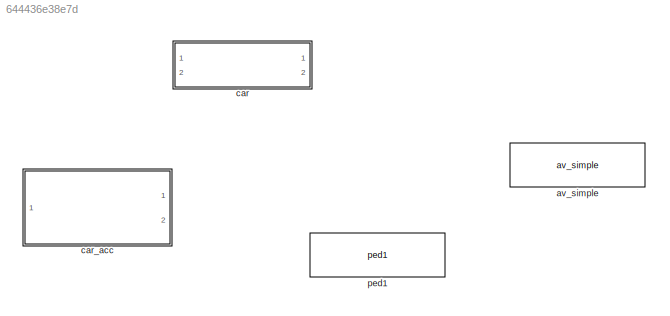
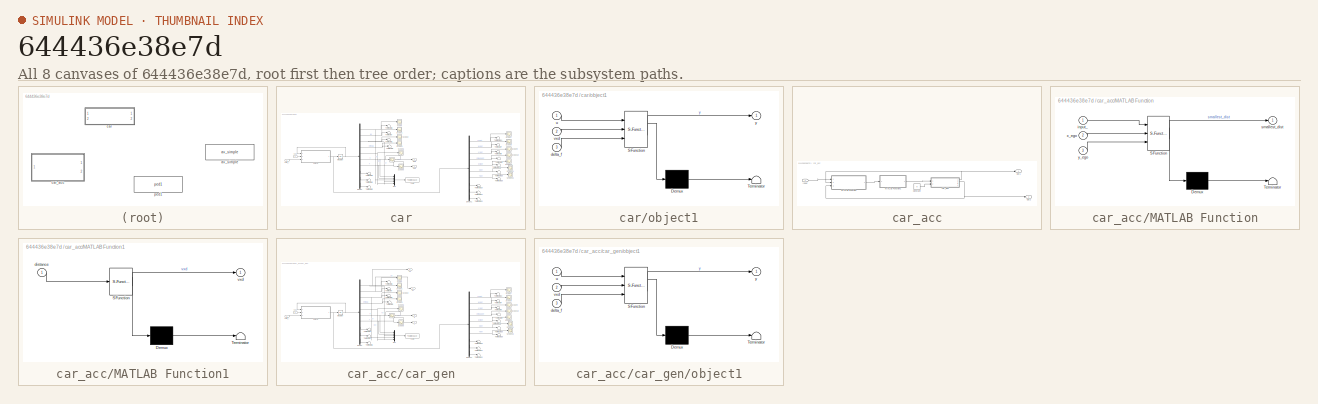
[diagram: thumbnail index - all 8 canvases of the model, root first then tree order]
MODEL slx_644436e38e7d
KIND library
CONFIG AbsTol = auto
CONFIG EnableMultiTasking = off
CONFIG FixedStep = auto
CONFIG MaxStep = auto
CONFIG MinStep = auto
CONFIG RelTol = 1e-3
CONFIG SampleTimeConstraint = Unconstrained
CONFIG Solver = VariableStepAuto
CONFIG SolverName = VariableStepAuto
CONFIG StartTime = 0.0
CONFIG StopTime = 10.0
BLOCK [Reference] av_simple  REF=genericAgentLib/av_simple
  Ports = [3]
  SourceBlock = genericAgentLib/av_simple
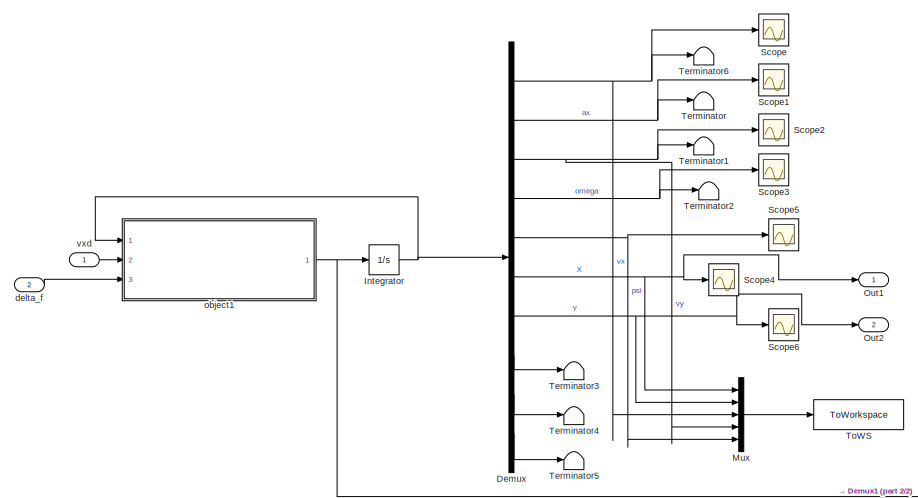
[diagram: car - part 1/2, left side, full height]
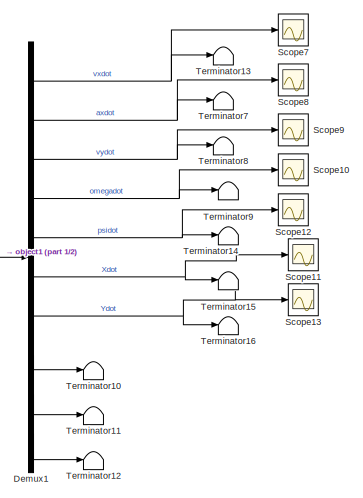
[diagram: car - part 2/2, right side, full height]
BLOCK [SubSystem] car
  AncestorBlock = genericAgentLib/car
  Ports = [2, 2]
  RequestExecContextInheritance = off
BLOCK [Demux] car/Demux
  DisplayOption = bar
  Outputs = 10
  Ports = [1, 10]
BLOCK [Demux] car/Demux1
  DisplayOption = bar
  Outputs = 10
  Ports = [1, 10]
BLOCK [Integrator] car/Integrator
  InitialCondition = obj.init
  Ports = [1, 1]
BLOCK [Mux] car/Mux
  DisplayOption = bar
  Inputs = 5
  Ports = [5, 1]
BLOCK [Outport] car/Out1
  IconDisplay = Port number
BLOCK [Outport] car/Out2
  IconDisplay = Port number
  Port = 2
BLOCK [Scope] car/Scope
  Floating = off
  NumInputPorts = 1
  Ports = [1]
  ScopeSpecificationString = Simulink.scopes.TimeScopeBlockCfg('CurrentConfiguration', extmgr.ConfigurationSet(extmgr.Configuration('Core','General UI',true),extmgr.Configuration('Core','Source UI',true),extmgr.Configuration('Sources','WiredSimulink',true,'DataLoggingVariableName','ScopeData1'),extmgr.Configuration('Visuals','Time Domain',true,'SerializedDisplays',{struct('MinYLimReal','-1.30429','MaxYLimReal','11.73858','YLa...<+1365ch>
BLOCK [Scope] car/Scope1
  Floating = off
  NumInputPorts = 1
  Ports = [1]
  ScopeSpecificationString = Simulink.scopes.TimeScopeBlockCfg('CurrentConfiguration', extmgr.ConfigurationSet(extmgr.Configuration('Core','General UI',true),extmgr.Configuration('Core','Source UI',true),extmgr.Configuration('Sources','WiredSimulink',true,'DataLoggingVariableName','ScopeData2'),extmgr.Configuration('Visuals','Time Domain',true,'SerializedDisplays',{struct('MinYLimReal','-7.94136','MaxYLimReal','51.56418','YLa...<+1365ch>
BLOCK [Scope] car/Scope10
  Floating = off
  NumInputPorts = 1
  Ports = [1]
  ScopeSpecificationString = Simulink.scopes.TimeScopeBlockCfg('CurrentConfiguration', extmgr.ConfigurationSet(extmgr.Configuration('Core','General UI',true),extmgr.Configuration('Core','Source UI',true),extmgr.Configuration('Sources','WiredSimulink',true,'DataLoggingVariableName','ScopeData1'),extmgr.Configuration('Visuals','Time Domain',true,'SerializedDisplays',{struct('MinYLimReal','-0.26788','MaxYLimReal','2.20907','YLab...<+1367ch>
BLOCK [Scope] car/Scope11
  Floating = off
  NumInputPorts = 1
  Ports = [1]
  ScopeSpecificationString = Simulink.scopes.TimeScopeBlockCfg('CurrentConfiguration', extmgr.ConfigurationSet(extmgr.Configuration('Core','General UI',true),extmgr.Configuration('Core','Source UI',true),extmgr.Configuration('Sources','WiredSimulink',true,'DataLoggingVariableName','ScopeData2'),extmgr.Configuration('Visuals','Time Domain',true,'SerializedDisplays',{struct('MinYLimReal','-11.14338','MaxYLimReal','100.29045','Y...<+1370ch>
BLOCK [Scope] car/Scope12
  Floating = off
  NumInputPorts = 1
  Ports = [1]
  ScopeSpecificationString = Simulink.scopes.TimeScopeBlockCfg('CurrentConfiguration', extmgr.ConfigurationSet(extmgr.Configuration('Core','General UI',true),extmgr.Configuration('Core','Source UI',true),extmgr.Configuration('Sources','WiredSimulink',true,'DataLoggingVariableName','ScopeData3'),extmgr.Configuration('Visuals','Time Domain',true,'SerializedDisplays',{struct('MinYLimReal','-0.02362','MaxYLimReal','0.21262','YLab...<+1365ch>
BLOCK [Scope] car/Scope13
  Floating = off
  NumInputPorts = 1
  Ports = [1]
  ScopeSpecificationString = Simulink.scopes.TimeScopeBlockCfg('CurrentConfiguration', extmgr.ConfigurationSet(extmgr.Configuration('Core','General UI',true),extmgr.Configuration('Core','Source UI',true),extmgr.Configuration('Sources','WiredSimulink',true,'DataLoggingVariableName','ScopeData4'),extmgr.Configuration('Visuals','Time Domain',true,'SerializedDisplays',{struct('MinYLimReal','-12.50135','MaxYLimReal','12.50096','YL...<+1369ch>
BLOCK [Scope] car/Scope2
  Floating = off
  NumInputPorts = 1
  Ports = [1]
  ScopeSpecificationString = Simulink.scopes.TimeScopeBlockCfg('CurrentConfiguration', extmgr.ConfigurationSet(extmgr.Configuration('Core','General UI',true),extmgr.Configuration('Core','Source UI',true),extmgr.Configuration('Sources','WiredSimulink',true,'DataLoggingVariableName','ScopeData3'),extmgr.Configuration('Visuals','Time Domain',true,'SerializedDisplays',{struct('MinYLimReal','-0.02095','MaxYLimReal','0.18855','YLab...<+1390ch>
BLOCK [Scope] car/Scope3
  Floating = off
  NumInputPorts = 1
  Ports = [1]
  ScopeSpecificationString = Simulink.scopes.TimeScopeBlockCfg('CurrentConfiguration', extmgr.ConfigurationSet(extmgr.Configuration('Core','General UI',true),extmgr.Configuration('Core','Source UI',true),extmgr.Configuration('Sources','WiredSimulink',true,'DataLoggingVariableName','ScopeData4'),extmgr.Configuration('Visuals','Time Domain',true,'SerializedDisplays',{struct('MinYLimReal','-0.02362','MaxYLimReal','0.21262','YLab...<+1364ch>
BLOCK [Scope] car/Scope4
  Floating = off
  NumInputPorts = 1
  Ports = [1]
  ScopeSpecificationString = Simulink.scopes.TimeScopeBlockCfg('CurrentConfiguration', extmgr.ConfigurationSet(extmgr.Configuration('Core','General UI',true),extmgr.Configuration('Core','Source UI',true),extmgr.Configuration('Sources','WiredSimulink',true,'DataLoggingVariableName','ScopeData5'),extmgr.Configuration('Visuals','Time Domain',true,'SerializedDisplays',{struct('MinYLimReal','-20.34242','MaxYLimReal','22.60029','YL...<+1366ch>
BLOCK [Scope] car/Scope5
  Floating = off
  NumInputPorts = 1
  Ports = [1]
  ScopeSpecificationString = Simulink.scopes.TimeScopeBlockCfg('CurrentConfiguration', extmgr.ConfigurationSet(extmgr.Configuration('Core','General UI',true),extmgr.Configuration('Core','Source UI',true),extmgr.Configuration('Sources','WiredSimulink',true,'DataLoggingVariableName','ScopeData6'),extmgr.Configuration('Visuals','Time Domain',true,'SerializedDisplays',{struct('MinYLimReal','-0.08776','MaxYLimReal','0.78983','YLab...<+1362ch>
BLOCK [Scope] car/Scope6
  Floating = off
  NumInputPorts = 1
  Ports = [1]
  ScopeSpecificationString = Simulink.scopes.TimeScopeBlockCfg('CurrentConfiguration', extmgr.ConfigurationSet(extmgr.Configuration('Core','General UI',true),extmgr.Configuration('Core','Source UI',true),extmgr.Configuration('Sources','WiredSimulink',true,'DataLoggingVariableName','ScopeData7'),extmgr.Configuration('Visuals','Time Domain',true,'SerializedDisplays',{struct('MinYLimReal','-38.61337','MaxYLimReal','4.33051','YLa...<+1364ch>
BLOCK [Scope] car/Scope7
  Floating = off
  NumInputPorts = 1
  Ports = [1]
  ScopeSpecificationString = Simulink.scopes.TimeScopeBlockCfg('CurrentConfiguration', extmgr.ConfigurationSet(extmgr.Configuration('Core','General UI',true),extmgr.Configuration('Core','Source UI',true),extmgr.Configuration('Sources','WiredSimulink',true,'DataLoggingVariableName','ScopeData5'),extmgr.Configuration('Visuals','Time Domain',true,'SerializedDisplays',{struct('MinYLimReal','-7.98679','MaxYLimReal','51.5673','YLab...<+1364ch>
BLOCK [Scope] car/Scope8
  Floating = off
  NumInputPorts = 1
  Ports = [1]
  ScopeSpecificationString = Simulink.scopes.TimeScopeBlockCfg('CurrentConfiguration', extmgr.ConfigurationSet(extmgr.Configuration('Core','General UI',true),extmgr.Configuration('Core','Source UI',true),extmgr.Configuration('Sources','WiredSimulink',true,'DataLoggingVariableName','ScopeData6'),extmgr.Configuration('Visuals','Time Domain',true,'SerializedDisplays',{struct('MinYLimReal','-359.43212','MaxYLimReal','1151.04801',...<+1382ch>
BLOCK [Scope] car/Scope9
  Floating = off
  NumInputPorts = 1
  Ports = [1]
  ScopeSpecificationString = Simulink.scopes.TimeScopeBlockCfg('CurrentConfiguration', extmgr.ConfigurationSet(extmgr.Configuration('Core','General UI',true),extmgr.Configuration('Core','Source UI',true),extmgr.Configuration('Sources','WiredSimulink',true,'DataLoggingVariableName','ScopeData7'),extmgr.Configuration('Visuals','Time Domain',true,'SerializedDisplays',{struct('MinYLimReal','-1.62163','MaxYLimReal','7.93421','YLab...<+1364ch>
BLOCK [Terminator] car/Terminator
BLOCK [Terminator] car/Terminator1
BLOCK [Terminator] car/Terminator10
BLOCK [Terminator] car/Terminator11
BLOCK [Terminator] car/Terminator12
BLOCK [Terminator] car/Terminator13
BLOCK [Terminator] car/Terminator14
BLOCK [Terminator] car/Terminator15
BLOCK [Terminator] car/Terminator16
BLOCK [Terminator] car/Terminator2
BLOCK [Terminator] car/Terminator3
BLOCK [Terminator] car/Terminator4
BLOCK [Terminator] car/Terminator5
BLOCK [Terminator] car/Terminator6
BLOCK [Terminator] car/Terminator7
BLOCK [Terminator] car/Terminator8
BLOCK [Terminator] car/Terminator9
BLOCK [ToWorkspace] car/ToWS
  FixptAsFi = on
  MaxDataPoints = inf
  Ports = [1]
  SampleTime = -1
  SaveFormat = Timeseries
  VariableName = Car1
BLOCK [Inport] car/delta_f
  IconDisplay = Port number
  Port = 2
BLOCK [SubSystem] car/object1
  ErrorFcn = Stateflow.Translate.translate
  PermitHierarchicalResolution = ExplicitOnly
  Ports = [3, 1]
  RequestExecContextInheritance = off
  SFBlockType = MATLAB Function
  TreatAsAtomicUnit = on
BLOCK [Demux] car/object1/ Demux 
  Outputs = 1
  Ports = [1, 1]
BLOCK [S-Function] car/object1/ SFunction 
  EnableBusSupport = off
  FunctionName = sf_sfun
  Parameters = obj
  PortCounts = [3 2]
  Ports = [3, 2]
  SFcnIsStateOwnerBlock = off
  SFunctionDeploymentMode = off
  Tag = Stateflow S-Function 2
BLOCK [Terminator] car/object1/ Terminator 
BLOCK [Inport] car/object1/delta_f
  IconDisplay = Port number
  Port = 3
BLOCK [Inport] car/object1/u
  IconDisplay = Port number
BLOCK [Inport] car/object1/vxd
  IconDisplay = Port number
  Port = 2
BLOCK [Outport] car/object1/y
  IconDisplay = Port number
BLOCK [Inport] car/vxd 
  IconDisplay = Port number
BLOCK [SubSystem] car_acc
  Ports = [1, 2]
  RequestExecContextInheritance = off
BLOCK [Constant] car_acc/Constant
  Value = 0
BLOCK [Inport] car_acc/Input
  IconDisplay = Port number
BLOCK [SubSystem] car_acc/MATLAB Function
  ErrorFcn = Stateflow.Translate.translate
  PermitHierarchicalResolution = ExplicitOnly
  Ports = [3, 1]
  RequestExecContextInheritance = off
  SFBlockType = MATLAB Function
  TreatAsAtomicUnit = on
BLOCK [Demux] car_acc/MATLAB Function/ Demux 
  Outputs = 1
  Ports = [1, 1]
BLOCK [S-Function] car_acc/MATLAB Function/ SFunction 
  EnableBusSupport = off
  FunctionName = sf_sfun
  PortCounts = [3 2]
  Ports = [3, 2]
  SFcnIsStateOwnerBlock = off
  SFunctionDeploymentMode = off
  Tag = Stateflow S-Function 3
BLOCK [Terminator] car_acc/MATLAB Function/ Terminator 
BLOCK [Inport] car_acc/MATLAB Function/input_
  IconDisplay = Port number
BLOCK [Outport] car_acc/MATLAB Function/smallest_dist
  IconDisplay = Port number
BLOCK [Inport] car_acc/MATLAB Function/x_ego
  IconDisplay = Port number
  Port = 2
BLOCK [Inport] car_acc/MATLAB Function/y_ego
  IconDisplay = Port number
  Port = 3
BLOCK [SubSystem] car_acc/MATLAB Function1
  ErrorFcn = Stateflow.Translate.translate
  PermitHierarchicalResolution = ExplicitOnly
  Ports = [1, 1]
  RequestExecContextInheritance = off
  SFBlockType = MATLAB Function
  TreatAsAtomicUnit = on
BLOCK [Demux] car_acc/MATLAB Function1/ Demux 
  Outputs = 1
  Ports = [1, 1]
BLOCK [S-Function] car_acc/MATLAB Function1/ SFunction 
  EnableBusSupport = off
  FunctionName = sf_sfun
  PortCounts = [1 2]
  Ports = [1, 2]
  SFcnIsStateOwnerBlock = off
  SFunctionDeploymentMode = off
  Tag = Stateflow S-Function 4
BLOCK [Terminator] car_acc/MATLAB Function1/ Terminator 
BLOCK [Inport] car_acc/MATLAB Function1/distance
  IconDisplay = Port number
BLOCK [Outport] car_acc/MATLAB Function1/vxd
  IconDisplay = Port number
BLOCK [Outport] car_acc/Out1
  IconDisplay = Port number
BLOCK [Outport] car_acc/Out2
  IconDisplay = Port number
  Port = 2
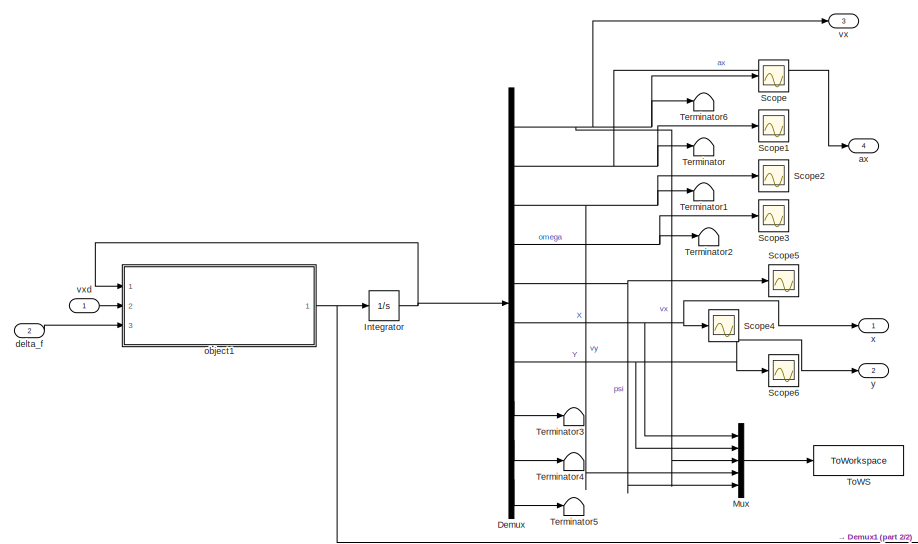
[diagram: car_acc/car_gen - part 1/2, left side, full height]
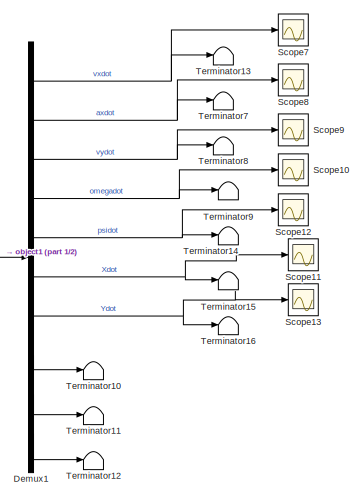
[diagram: car_acc/car_gen - part 2/2, right side, full height]
BLOCK [SubSystem] car_acc/car_gen
  AncestorBlock = genericAgentLib/car
  Ports = [2, 4]
  RequestExecContextInheritance = off
BLOCK [Demux] car_acc/car_gen/Demux
  DisplayOption = bar
  Outputs = 10
  Ports = [1, 10]
BLOCK [Demux] car_acc/car_gen/Demux1
  DisplayOption = bar
  Outputs = 10
  Ports = [1, 10]
BLOCK [Integrator] car_acc/car_gen/Integrator
  InitialCondition = obj.init
  Ports = [1, 1]
BLOCK [Mux] car_acc/car_gen/Mux
  DisplayOption = bar
  Inputs = 5
  Ports = [5, 1]
BLOCK [Scope] car_acc/car_gen/Scope
  Floating = off
  NumInputPorts = 1
  Ports = [1]
  ScopeSpecificationString = Simulink.scopes.TimeScopeBlockCfg('CurrentConfiguration', extmgr.ConfigurationSet(extmgr.Configuration('Core','General UI',true),extmgr.Configuration('Core','Source UI',true),extmgr.Configuration('Sources','WiredSimulink',true,'DataLoggingVariableName','ScopeData1'),extmgr.Configuration('Visuals','Time Domain',true,'SerializedDisplays',{struct('MinYLimReal','-1.30429','MaxYLimReal','11.73858','YLa...<+1365ch>
BLOCK [Scope] car_acc/car_gen/Scope1
  Floating = off
  NumInputPorts = 1
  Ports = [1]
  ScopeSpecificationString = Simulink.scopes.TimeScopeBlockCfg('CurrentConfiguration', extmgr.ConfigurationSet(extmgr.Configuration('Core','General UI',true),extmgr.Configuration('Core','Source UI',true),extmgr.Configuration('Sources','WiredSimulink',true,'DataLoggingVariableName','ScopeData2'),extmgr.Configuration('Visuals','Time Domain',true,'SerializedDisplays',{struct('MinYLimReal','-7.94136','MaxYLimReal','51.56418','YLa...<+1365ch>
BLOCK [Scope] car_acc/car_gen/Scope10
  Floating = off
  NumInputPorts = 1
  Ports = [1]
  ScopeSpecificationString = Simulink.scopes.TimeScopeBlockCfg('CurrentConfiguration', extmgr.ConfigurationSet(extmgr.Configuration('Core','General UI',true),extmgr.Configuration('Core','Source UI',true),extmgr.Configuration('Sources','WiredSimulink',true,'DataLoggingVariableName','ScopeData1'),extmgr.Configuration('Visuals','Time Domain',true,'SerializedDisplays',{struct('MinYLimReal','-0.26788','MaxYLimReal','2.20907','YLab...<+1367ch>
BLOCK [Scope] car_acc/car_gen/Scope11
  Floating = off
  NumInputPorts = 1
  Ports = [1]
  ScopeSpecificationString = Simulink.scopes.TimeScopeBlockCfg('CurrentConfiguration', extmgr.ConfigurationSet(extmgr.Configuration('Core','General UI',true),extmgr.Configuration('Core','Source UI',true),extmgr.Configuration('Sources','WiredSimulink',true,'DataLoggingVariableName','ScopeData2'),extmgr.Configuration('Visuals','Time Domain',true,'SerializedDisplays',{struct('MinYLimReal','-11.14338','MaxYLimReal','100.29045','Y...<+1370ch>
BLOCK [Scope] car_acc/car_gen/Scope12
  Floating = off
  NumInputPorts = 1
  Ports = [1]
  ScopeSpecificationString = Simulink.scopes.TimeScopeBlockCfg('CurrentConfiguration', extmgr.ConfigurationSet(extmgr.Configuration('Core','General UI',true),extmgr.Configuration('Core','Source UI',true),extmgr.Configuration('Sources','WiredSimulink',true,'DataLoggingVariableName','ScopeData3'),extmgr.Configuration('Visuals','Time Domain',true,'SerializedDisplays',{struct('MinYLimReal','-0.02362','MaxYLimReal','0.21262','YLab...<+1365ch>
BLOCK [Scope] car_acc/car_gen/Scope13
  Floating = off
  NumInputPorts = 1
  Ports = [1]
  ScopeSpecificationString = Simulink.scopes.TimeScopeBlockCfg('CurrentConfiguration', extmgr.ConfigurationSet(extmgr.Configuration('Core','General UI',true),extmgr.Configuration('Core','Source UI',true),extmgr.Configuration('Sources','WiredSimulink',true,'DataLoggingVariableName','ScopeData4'),extmgr.Configuration('Visuals','Time Domain',true,'SerializedDisplays',{struct('MinYLimReal','-12.50135','MaxYLimReal','12.50096','YL...<+1369ch>
BLOCK [Scope] car_acc/car_gen/Scope2
  Floating = off
  NumInputPorts = 1
  Ports = [1]
  ScopeSpecificationString = Simulink.scopes.TimeScopeBlockCfg('CurrentConfiguration', extmgr.ConfigurationSet(extmgr.Configuration('Core','General UI',true),extmgr.Configuration('Core','Source UI',true),extmgr.Configuration('Sources','WiredSimulink',true,'DataLoggingVariableName','ScopeData3'),extmgr.Configuration('Visuals','Time Domain',true,'SerializedDisplays',{struct('MinYLimReal','-0.02095','MaxYLimReal','0.18855','YLab...<+1390ch>
BLOCK [Scope] car_acc/car_gen/Scope3
  Floating = off
  NumInputPorts = 1
  Ports = [1]
  ScopeSpecificationString = Simulink.scopes.TimeScopeBlockCfg('CurrentConfiguration', extmgr.ConfigurationSet(extmgr.Configuration('Core','General UI',true),extmgr.Configuration('Core','Source UI',true),extmgr.Configuration('Sources','WiredSimulink',true,'DataLoggingVariableName','ScopeData4'),extmgr.Configuration('Visuals','Time Domain',true,'SerializedDisplays',{struct('MinYLimReal','-0.02362','MaxYLimReal','0.21262','YLab...<+1364ch>
BLOCK [Scope] car_acc/car_gen/Scope4
  Floating = off
  NumInputPorts = 1
  Ports = [1]
  ScopeSpecificationString = Simulink.scopes.TimeScopeBlockCfg('CurrentConfiguration', extmgr.ConfigurationSet(extmgr.Configuration('Core','General UI',true),extmgr.Configuration('Core','Source UI',true),extmgr.Configuration('Sources','WiredSimulink',true,'DataLoggingVariableName','ScopeData5'),extmgr.Configuration('Visuals','Time Domain',true,'SerializedDisplays',{struct('MinYLimReal','-20.34242','MaxYLimReal','22.60029','YL...<+1366ch>
BLOCK [Scope] car_acc/car_gen/Scope5
  Floating = off
  NumInputPorts = 1
  Ports = [1]
  ScopeSpecificationString = Simulink.scopes.TimeScopeBlockCfg('CurrentConfiguration', extmgr.ConfigurationSet(extmgr.Configuration('Core','General UI',true),extmgr.Configuration('Core','Source UI',true),extmgr.Configuration('Sources','WiredSimulink',true,'DataLoggingVariableName','ScopeData6'),extmgr.Configuration('Visuals','Time Domain',true,'SerializedDisplays',{struct('MinYLimReal','-0.08776','MaxYLimReal','0.78983','YLab...<+1362ch>
BLOCK [Scope] car_acc/car_gen/Scope6
  Floating = off
  NumInputPorts = 1
  Ports = [1]
  ScopeSpecificationString = Simulink.scopes.TimeScopeBlockCfg('CurrentConfiguration', extmgr.ConfigurationSet(extmgr.Configuration('Core','General UI',true),extmgr.Configuration('Core','Source UI',true),extmgr.Configuration('Sources','WiredSimulink',true,'DataLoggingVariableName','ScopeData7'),extmgr.Configuration('Visuals','Time Domain',true,'SerializedDisplays',{struct('MinYLimReal','-38.61337','MaxYLimReal','4.33051','YLa...<+1364ch>
BLOCK [Scope] car_acc/car_gen/Scope7
  Floating = off
  NumInputPorts = 1
  Ports = [1]
  ScopeSpecificationString = Simulink.scopes.TimeScopeBlockCfg('CurrentConfiguration', extmgr.ConfigurationSet(extmgr.Configuration('Core','General UI',true),extmgr.Configuration('Core','Source UI',true),extmgr.Configuration('Sources','WiredSimulink',true,'DataLoggingVariableName','ScopeData5'),extmgr.Configuration('Visuals','Time Domain',true,'SerializedDisplays',{struct('MinYLimReal','-7.98679','MaxYLimReal','51.5673','YLab...<+1364ch>
BLOCK [Scope] car_acc/car_gen/Scope8
  Floating = off
  NumInputPorts = 1
  Ports = [1]
  ScopeSpecificationString = Simulink.scopes.TimeScopeBlockCfg('CurrentConfiguration', extmgr.ConfigurationSet(extmgr.Configuration('Core','General UI',true),extmgr.Configuration('Core','Source UI',true),extmgr.Configuration('Sources','WiredSimulink',true,'DataLoggingVariableName','ScopeData6'),extmgr.Configuration('Visuals','Time Domain',true,'SerializedDisplays',{struct('MinYLimReal','-359.43212','MaxYLimReal','1151.04801',...<+1382ch>
BLOCK [Scope] car_acc/car_gen/Scope9
  Floating = off
  NumInputPorts = 1
  Ports = [1]
  ScopeSpecificationString = Simulink.scopes.TimeScopeBlockCfg('CurrentConfiguration', extmgr.ConfigurationSet(extmgr.Configuration('Core','General UI',true),extmgr.Configuration('Core','Source UI',true),extmgr.Configuration('Sources','WiredSimulink',true,'DataLoggingVariableName','ScopeData7'),extmgr.Configuration('Visuals','Time Domain',true,'SerializedDisplays',{struct('MinYLimReal','-1.62163','MaxYLimReal','7.93421','YLab...<+1364ch>
BLOCK [Terminator] car_acc/car_gen/Terminator
BLOCK [Terminator] car_acc/car_gen/Terminator1
BLOCK [Terminator] car_acc/car_gen/Terminator10
BLOCK [Terminator] car_acc/car_gen/Terminator11
BLOCK [Terminator] car_acc/car_gen/Terminator12
BLOCK [Terminator] car_acc/car_gen/Terminator13
BLOCK [Terminator] car_acc/car_gen/Terminator14
BLOCK [Terminator] car_acc/car_gen/Terminator15
BLOCK [Terminator] car_acc/car_gen/Terminator16
BLOCK [Terminator] car_acc/car_gen/Terminator2
BLOCK [Terminator] car_acc/car_gen/Terminator3
BLOCK [Terminator] car_acc/car_gen/Terminator4
BLOCK [Terminator] car_acc/car_gen/Terminator5
BLOCK [Terminator] car_acc/car_gen/Terminator6
BLOCK [Terminator] car_acc/car_gen/Terminator7
BLOCK [Terminator] car_acc/car_gen/Terminator8
BLOCK [Terminator] car_acc/car_gen/Terminator9
BLOCK [ToWorkspace] car_acc/car_gen/ToWS
  FixptAsFi = on
  MaxDataPoints = inf
  Ports = [1]
  SampleTime = -1
  SaveFormat = Timeseries
  VariableName = Car1
BLOCK [Outport] car_acc/car_gen/ax 
  IconDisplay = Port number
  Port = 4
BLOCK [Inport] car_acc/car_gen/delta_f
  IconDisplay = Port number
  Port = 2
BLOCK [SubSystem] car_acc/car_gen/object1
  ErrorFcn = Stateflow.Translate.translate
  PermitHierarchicalResolution = ExplicitOnly
  Ports = [3, 1]
  RequestExecContextInheritance = off
  SFBlockType = MATLAB Function
  TreatAsAtomicUnit = on
BLOCK [Demux] car_acc/car_gen/object1/ Demux 
  Outputs = 1
  Ports = [1, 1]
BLOCK [S-Function] car_acc/car_gen/object1/ SFunction 
  EnableBusSupport = off
  FunctionName = sf_sfun
  Parameters = obj
  PortCounts = [3 2]
  Ports = [3, 2]
  SFcnIsStateOwnerBlock = off
  SFunctionDeploymentMode = off
  Tag = Stateflow S-Function 1
BLOCK [Terminator] car_acc/car_gen/object1/ Terminator 
BLOCK [Inport] car_acc/car_gen/object1/delta_f
  IconDisplay = Port number
  Port = 3
BLOCK [Inport] car_acc/car_gen/object1/u
  IconDisplay = Port number
BLOCK [Inport] car_acc/car_gen/object1/vxd
  IconDisplay = Port number
  Port = 2
BLOCK [Outport] car_acc/car_gen/object1/y
  IconDisplay = Port number
BLOCK [Outport] car_acc/car_gen/vx
  IconDisplay = Port number
  Port = 3
BLOCK [Inport] car_acc/car_gen/vxd 
  IconDisplay = Port number
BLOCK [Outport] car_acc/car_gen/x
  IconDisplay = Port number
BLOCK [Outport] car_acc/car_gen/y
  IconDisplay = Port number
  Port = 2
BLOCK [Reference] ped1  REF=genericAgentLib/ped1
  Ports = [2]
  SourceBlock = genericAgentLib/ped1
LINE car_acc/Constant:1 -> car_acc/car_gen:2
LINE car_acc/Input:1 -> car_acc/MATLAB Function:1
LINE car_acc/MATLAB Function1:1 -> car_acc/car_gen:1
LINE car_acc/MATLAB Function:1 -> car_acc/MATLAB Function1:1
NET car_acc/car_gen:1 -> car_acc/MATLAB Function:2, car_acc/Out1:1
NET car_acc/car_gen:2 -> car_acc/MATLAB Function:3, car_acc/Out2:1
note: NET lines group one-source signal fan-out (src -> all destinations, sorted); 1:1 wires keep LINE
CHART car_acc/car_gen/object1 states=1 transitions=1
  STATE_LABEL 'eML_blk_kernel()'
  STATE_LABEL 'SCRIPT:\nfunction y = fcn(u,vxd, delta_f, obj)\n\nvx = u(1);\nax = u(2);\nvy = u(3);\nomega = u(4);\npsi = u(5);\nX = u(6);\nY = u(7);\n\nif abs(vx)> obj.vx_threshold1\n    alpha_f = delta_f * pi/180 - (vy + omega * obj.lf) / vx;\n    alpha_r = - (vy - omega * obj.lr) / vx;\nelse\n    alpha_f = 0;\n    alpha_r = 0;\nend\n\nFx = obj.m * ax;\nFyf = min(obj.Fyfmax,obj.Calpha_f * alpha_f);\nFyr = min(obj.Fyrmax, obj.Calph...<+470ch>'
CHART car/object1 states=1 transitions=1
  STATE_LABEL 'eML_blk_kernel()'
  STATE_LABEL 'SCRIPT:\nfunction y = fcn(u,vxd, delta_f, obj)\n\nvx = u(1);\nax = u(2);\nvy = u(3);\nomega = u(4);\npsi = u(5);\nX = u(6);\nY = u(7);\n\nif abs(vx)> obj.vx_threshold1\n    alpha_f = delta_f * pi/180 - (vy + omega * obj.lf) / vx;\n    alpha_r = - (vy - omega * obj.lr) / vx;\nelse\n    alpha_f = 0;\n    alpha_r = 0;\nend\n\nFx = obj.m * ax;\nFyf = min(obj.Fyfmax,obj.Calpha_f * alpha_f);\nFyr = min(obj.Fyrmax, obj.Calph...<+470ch>'
CHART car_acc/MATLAB Function states=1 transitions=1
  STATE_LABEL 'eML_blk_kernel()'
  STATE_LABEL 'SCRIPT:\nfunction smallest_dist = sensor(input_, x_ego, y_ego)\n\nsmallest_d = inf;\nx = 1;\n\n\nfor c = 1:(length(input_)/2)\n\n    temp_d = sqrt((x_ego - input_(x))^2+(y_ego-input_(x+1))^2);\n    \n    if ((smallest_d > temp_d) && (temp_d > 1) &&((input_(x) > x_ego)))% &&~(y_ego == input_(x+1)) )\n        \n        smallest_d = temp_d;\n        \n    end\n    x = x+2;\n    \nend\n\n\nsmallest_dist = smallest_d;\n'
CHART car_acc/MATLAB Function1 states=1 transitions=1
  STATE_LABEL 'eML_blk_kernel()'
  STATE_LABEL 'SCRIPT:\nfunction vxd = fcn(distance)\n\nd_thres1 = 80;\nd_thres2 = 100;\nvx_ref = 30;\nkp = 0.001;\ncc = 1;\nvxd = 1;\nif(cc)\n    v_des = vx_ref;\n    if(distance <= d_thres1)\n        cc = 0;\n    else\n        cc = 1;%redunadnt statement\n    end\nelse \n    v_des = vx_ref - kp*(d_thres1 - distance);\n    if(distance > d_thres2)\n        cc = 1;\n    else\n        cc = 0;%redundant statement\n    end\nend\n\n% \n% if((...<+176ch>'
